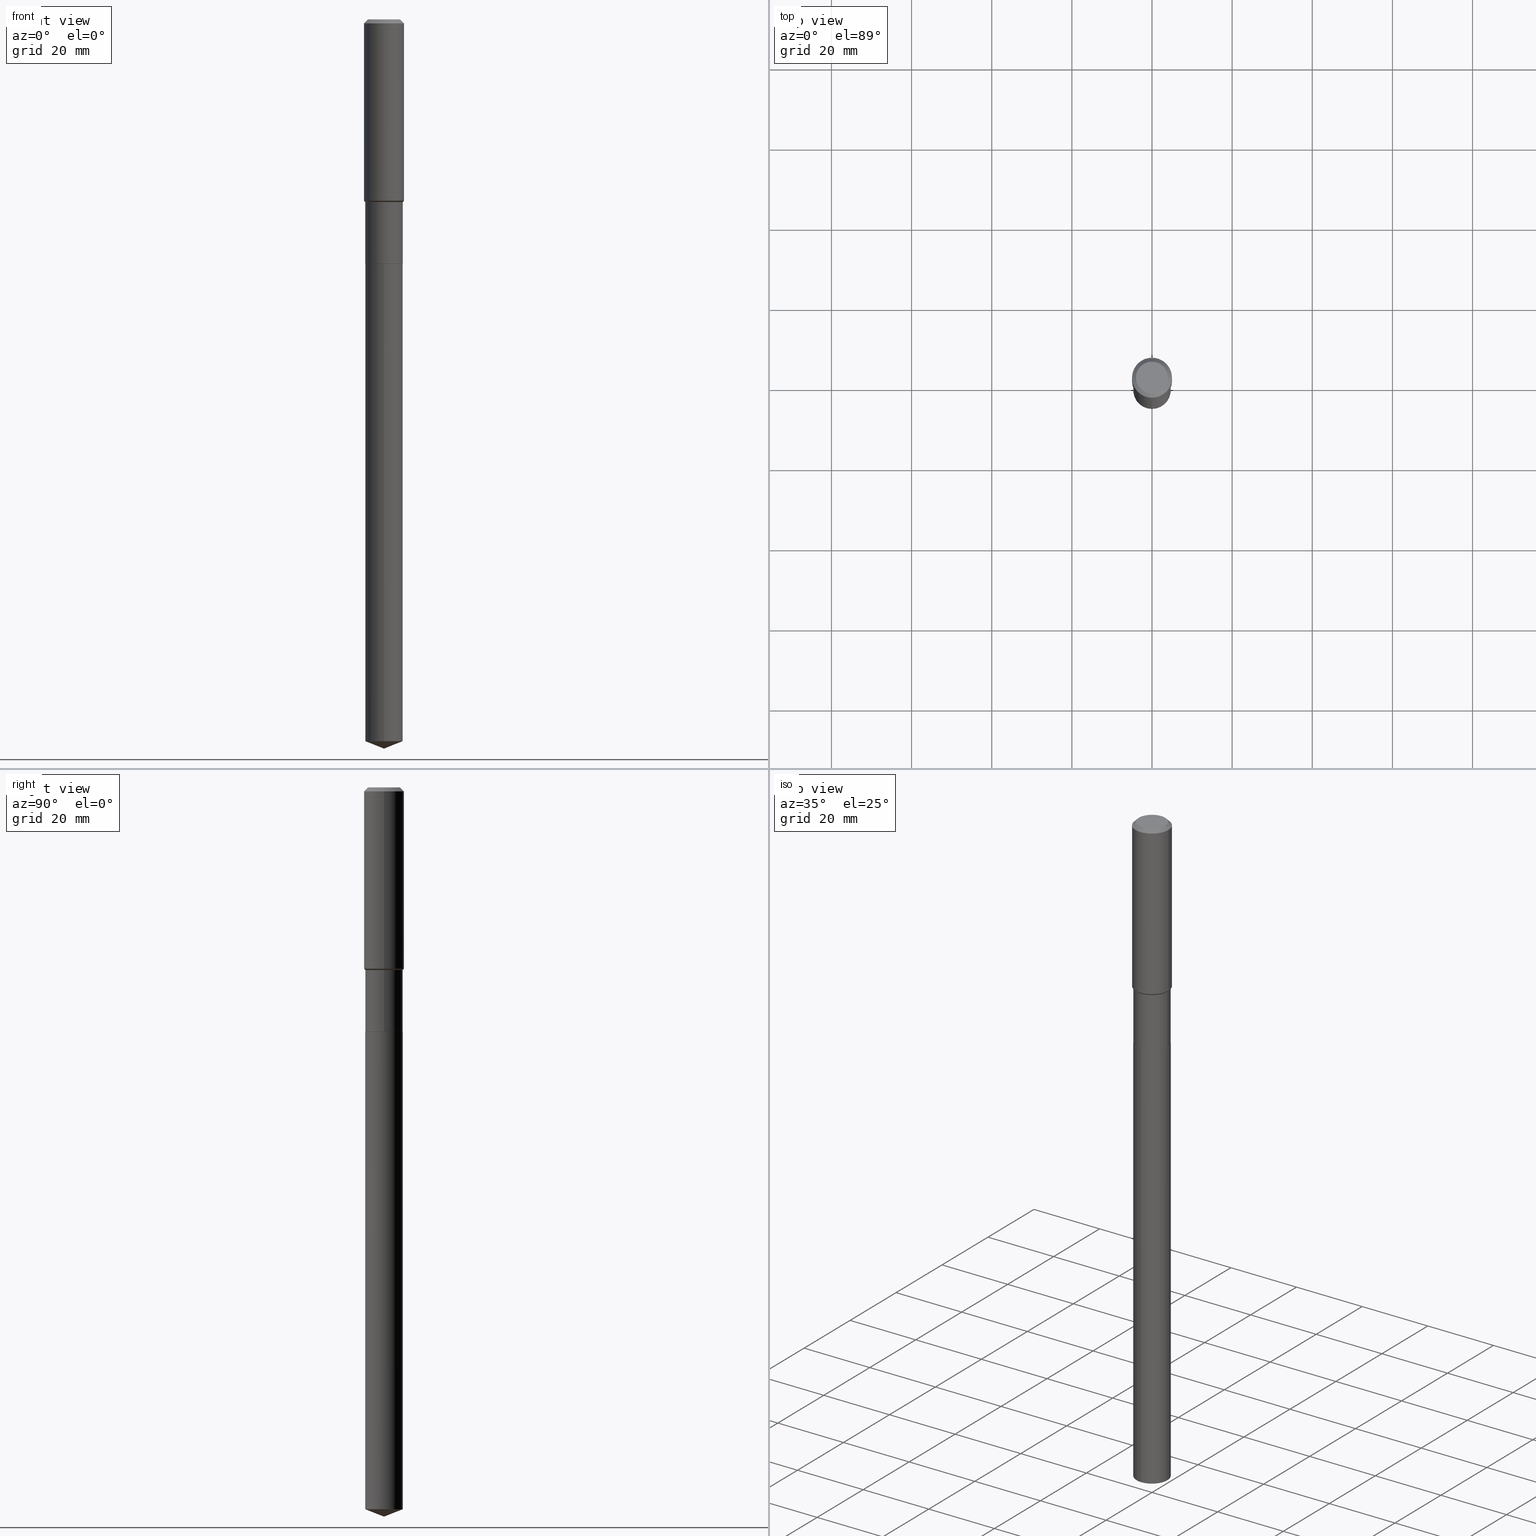
[diagram: canonical four-view strip — front | top / right | iso, engineering-drawing reading convention]
A machine part, canonical four-view strip (front | top / right | iso — engineering-drawing reading convention). The complete STEP part file that produces these views, byte-faithful:
ISO-10303-21;
HEADER;
FILE_DESCRIPTION (( 'STEP AP203' ),
    '1' );
FILE_NAME ('56528.STEP',
    '2024-04-24T18:19:25',
    ( '' ),
    ( '' ),
    'SwSTEP 2.0',
    'SolidWorks 2023',
    '' );
FILE_SCHEMA (( 'CONFIG_CONTROL_DESIGN' ));
ENDSEC;

DATA;
#1 = VERTEX_POINT ( 'NONE', #459 ) ;
#2 = ORIENTED_EDGE ( 'NONE', *, *, #70, .F. ) ;
#3 =( NAMED_UNIT ( * ) PLANE_ANGLE_UNIT ( ) SI_UNIT ( $, .RADIAN. ) );
#4 = CC_DESIGN_APPROVAL ( #135, ( #165 ) ) ;
#5 = AXIS2_PLACEMENT_3D ( 'NONE', #320, #175, #178 ) ;
#6 = ORIENTED_EDGE ( 'NONE', *, *, #450, .F. ) ;
#7 = EDGE_LOOP ( 'NONE', ( #153, #81, #277, #161 ) ) ;
#8 = PERSON_AND_ORGANIZATION ( #205, #455 ) ;
#9 = DIRECTION ( 'NONE',  ( -2.445468806185136597E-29, 3.491481338843145583E-15, 1.000000000000000000 ) ) ;
#10 = EDGE_CURVE ( 'NONE', #379, #243, #325, .T. ) ;
#11 = ORIENTED_EDGE ( 'NONE', *, *, #112, .T. ) ;
#12 = CARTESIAN_POINT ( 'NONE',  ( -1.284865132694099423E-15, -0.1840000000000246994, -7.092520472486850025 ) ) ;
#13 = AXIS2_PLACEMENT_3D ( 'NONE', #440, #105, #259 ) ;
#14 = EDGE_LOOP ( 'NONE', ( #225, #429, #38, #484 ) ) ;
#15 = LINE ( 'NONE', #288, #171 ) ;
#16 = CARTESIAN_POINT ( 'NONE',  ( -0.1839999999999999969, -6.018252937295160618E-15, -2.401499999999999968 ) ) ;
#17 = DIRECTION ( 'NONE',  ( -2.445468806185136597E-29, 3.491481338843145583E-15, 1.000000000000000000 ) ) ;
#18 = DIRECTION ( 'NONE',  ( -2.445468806185136597E-29, 3.491481338843145583E-15, 1.000000000000000000 ) ) ;
#19 = CARTESIAN_POINT ( 'NONE',  ( 4.389127413341083429E-29, -6.266510706955677702E-15, -1.794800000000000173 ) ) ;
#20 = DIRECTION ( 'NONE',  ( -2.445489705462467392E-29, 3.491451409888495011E-15, 1.000000000000000000 ) ) ;
#21 = AXIS2_PLACEMENT_3D ( 'NONE', #99, #93, #469 ) ;
#22 = AXIS2_PLACEMENT_3D ( 'NONE', #101, #24, #182 ) ;
#23 = DIRECTION ( 'NONE',  ( 1.000000000000000000, -6.982962677686261977E-15, 0.000000000000000000 ) ) ;
#24 = DIRECTION ( 'NONE',  ( -2.445468806185136597E-29, 3.491481338843145583E-15, 1.000000000000000000 ) ) ;
#25 = CARTESIAN_POINT ( 'NONE',  ( 1.734463560118424008E-28, -2.476326249267630010E-14, -7.092520472486850913 ) ) ;
#26 = DIRECTION ( 'NONE',  ( -2.445468806185136597E-29, 3.491481338843145583E-15, 1.000000000000000000 ) ) ;
#27 = EDGE_CURVE ( 'NONE', #243, #379, #434, .T. ) ;
#28 = CLOSED_SHELL ( 'NONE', ( #271, #482, #246, #221, #95, #68, #366, #464, #37, #192, #308, #49 ) ) ;
#29 = AXIS2_PLACEMENT_3D ( 'NONE', #263, #102, #296 ) ;
#30 = EDGE_CURVE ( 'NONE', #274, #160, #316, .T. ) ;
#31 = CIRCLE ( 'NONE', #306, 0.1968500000000002192 ) ;
#32 = DIRECTION ( 'NONE',  ( 1.000000000000000000, -6.982962677686265922E-15, 4.876223630392693006E-29 ) ) ;
#33 = ORIENTED_EDGE ( 'NONE', *, *, #138, .T. ) ;
#34 = DIRECTION ( 'NONE',  ( -1.000000000000000000, 6.982962677686265922E-15, 0.000000000000000000 ) ) ;
#35 = ORIENTED_EDGE ( 'NONE', *, *, #376, .F. ) ;
#36 = VERTEX_POINT ( 'NONE', #441 ) ;
#37 = ADVANCED_FACE ( 'NONE', ( #139 ), #354, .T. ) ;
#38 = ORIENTED_EDGE ( 'NONE', *, *, #485, .T. ) ;
#39 = ORIENTED_EDGE ( 'NONE', *, *, #30, .T. ) ;
#40 = DATE_AND_TIME ( #349, #206 ) ;
#41 = ORIENTED_EDGE ( 'NONE', *, *, #132, .F. ) ;
#42 = CC_DESIGN_PERSON_AND_ORGANIZATION_ASSIGNMENT ( #73, #385, ( #165 ) ) ;
#43 = CLOSED_SHELL ( 'NONE', ( #303, #207, #214, #335, #395 ) ) ;
#44 = AXIS2_PLACEMENT_3D ( 'NONE', #245, #393, #310 ) ;
#45 = AXIS2_PLACEMENT_3D ( 'NONE', #184, #480, #474 ) ;
#46 = EDGE_LOOP ( 'NONE', ( #391, #52, #169, #460 ) ) ;
#47 = APPROVAL_STATUS ( 'not_yet_approved' ) ;
#48 = LINE ( 'NONE', #319, #107 ) ;
#49 = ADVANCED_FACE ( 'NONE', ( #406 ), #114, .T. ) ;
#50 = VERTEX_POINT ( 'NONE', #16 ) ;
#51 = FACE_OUTER_BOUND ( 'NONE', #341, .T. ) ;
#52 = ORIENTED_EDGE ( 'NONE', *, *, #10, .T. ) ;
#53 = ORIENTED_EDGE ( 'NONE', *, *, #80, .T. ) ;
#54 = DIRECTION ( 'NONE',  ( -2.445489705462467392E-29, 3.491451409888495011E-15, 1.000000000000000000 ) ) ;
#55 = CARTESIAN_POINT ( 'NONE',  ( 5.874016072456697244E-29, -8.386538175901234466E-15, -2.401999999999999691 ) ) ;
#56 = AXIS2_PLACEMENT_3D ( 'NONE', #121, #181, #97 ) ;
#57 = VECTOR ( 'NONE', #360, 39.37007874015748854 ) ;
#58 = LINE ( 'NONE', #463, #281 ) ;
#59 = CARTESIAN_POINT ( 'NONE',  ( 0.1968500000000000250, -1.487948651171581601E-15, -0.03937000000000024508 ) ) ;
#60 = DIRECTION ( 'NONE',  ( -6.982962677686265133E-15, -1.000000000000000000, 2.969399993113329585E-15 ) ) ;
#61 = CARTESIAN_POINT ( 'NONE',  ( 1.307398633798642893E-15, 0.1839999999999916147, -2.402000000000000135 ) ) ;
#62 = EDGE_CURVE ( 'NONE', #36, #88, #293, .T. ) ;
#63 = LINE ( 'NONE', #470, #77 ) ;
#64 = LINE ( 'NONE', #466, #57 ) ;
#65 = CARTESIAN_POINT ( 'NONE',  ( 0.1839999999999999414, -7.551375839649950871E-15, -1.794800000000000173 ) ) ;
#66 = AXIS2_PLACEMENT_3D ( 'NONE', #84, #9, #212 ) ;
#67 = DIRECTION ( 'NONE',  ( 0.7071067811865453523, -7.319954787623248157E-15, -0.7071067811865496822 ) ) ;
#68 = ADVANCED_FACE ( 'NONE', ( #173 ), #252, .T. ) ;
#69 = DIRECTION ( 'NONE',  ( 0.7071067811865522357, -2.468850131082306364E-15, 0.7071067811865427988 ) ) ;
#70 = EDGE_CURVE ( 'NONE', #488, #50, #94, .T. ) ;
#71 = DIRECTION ( 'NONE',  ( 1.000000000000000000, -6.982962677686265922E-15, 0.000000000000000000 ) ) ;
#72 = AXIS2_PLACEMENT_3D ( 'NONE', #267, #445, #32 ) ;
#73 = PERSON_AND_ORGANIZATION ( #205, #455 ) ;
#74 = EDGE_LOOP ( 'NONE', ( #41, #53, #111, #383 ) ) ;
#75 = CC_DESIGN_APPROVAL ( #224, ( #381 ) ) ;
#76 = AXIS2_PLACEMENT_3D ( 'NONE', #256, #248, #439 ) ;
#77 = VECTOR ( 'NONE', #407, 39.37007874015748143 ) ;
#78 = PERSON_AND_ORGANIZATION ( #205, #455 ) ;
#79 = PERSON_AND_ORGANIZATION_ROLE ( 'design_owner' ) ;
#80 = EDGE_CURVE ( 'NONE', #309, #197, #436, .T. ) ;
#81 = ORIENTED_EDGE ( 'NONE', *, *, #312, .T. ) ;
#82 = ORIENTED_EDGE ( 'NONE', *, *, #447, .T. ) ;
#83 = APPROVAL_DATE_TIME ( #86, #135 ) ;
#84 = CARTESIAN_POINT ( 'NONE',  ( 5.874016072456697244E-29, -8.386538175901234466E-15, -2.401999999999999691 ) ) ;
#85 = CIRCLE ( 'NONE', #29, 0.1968500000000002192 ) ;
#86 = DATE_AND_TIME ( #457, #333 ) ;
#87 = CARTESIAN_POINT ( 'NONE',  ( -7.875723872272743890E-28, 1.124423956835437741E-13, 32.20507874015748229 ) ) ;
#88 = VERTEX_POINT ( 'NONE', #355 ) ;
#89 = PERSON_AND_ORGANIZATION_ROLE ( 'design_supplier' ) ;
#90 = DIRECTION ( 'NONE',  ( -6.982962677686269866E-15, -1.000000000000000000, 3.498627837350016055E-15 ) ) ;
#91 = FACE_OUTER_BOUND ( 'NONE', #420, .T. ) ;
#92 = SECURITY_CLASSIFICATION ( '', '', #118 ) ;
#93 = DIRECTION ( 'NONE',  ( -2.445468806185136597E-29, 3.491481338843145583E-15, 1.000000000000000000 ) ) ;
#94 = CIRCLE ( 'NONE', #294, 0.1839999999999999969 ) ;
#95 = ADVANCED_FACE ( 'NONE', ( #329 ), #219, .T. ) ;
#96 = DIRECTION ( 'NONE',  ( -2.445489705462467392E-29, 3.491451409888495011E-15, 1.000000000000000000 ) ) ;
#97 = DIRECTION ( 'NONE',  ( 1.000000000000000000, -6.982962677686265922E-15, 0.000000000000000000 ) ) ;
#98 = DIRECTION ( 'NONE',  ( -2.445468806185136597E-29, 3.491481338843145583E-15, 1.000000000000000000 ) ) ;
#99 = CARTESIAN_POINT ( 'NONE',  ( 4.389127413341083429E-29, -6.266510706955677702E-15, -1.794800000000000173 ) ) ;
#100 = EDGE_CURVE ( 'NONE', #191, #309, #64, .T. ) ;
#101 = CARTESIAN_POINT ( 'NONE',  ( 5.872793338053605564E-29, -8.384792435231812174E-15, -2.401499999999999968 ) ) ;
#102 = DIRECTION ( 'NONE',  ( -2.445468806185136597E-29, 3.491481338843145583E-15, 1.000000000000000000 ) ) ;
#103 = CC_DESIGN_DATE_AND_TIME_ASSIGNMENT ( #40, #244, ( #381 ) ) ;
#104 = DIRECTION ( 'NONE',  ( -2.445468806185136877E-29, 3.491481338843145188E-15, 1.000000000000000000 ) ) ;
#105 = DIRECTION ( 'NONE',  ( 2.445489705462467112E-29, -3.491451409888495011E-15, -1.000000000000000000 ) ) ;
#106 = ORIENTED_EDGE ( 'NONE', *, *, #405, .F. ) ;
#107 = VECTOR ( 'NONE', #465, 39.37007874015748143 ) ;
#108 = VECTOR ( 'NONE', #227, 39.37007874015748143 ) ;
#109 = PERSON_AND_ORGANIZATION ( #205, #455 ) ;
#110 = ORIENTED_EDGE ( 'NONE', *, *, #226, .T. ) ;
#111 = ORIENTED_EDGE ( 'NONE', *, *, #405, .T. ) ;
#112 = EDGE_CURVE ( 'NONE', #235, #50, #216, .T. ) ;
#113 = APPROVAL_STATUS ( 'not_yet_approved' ) ;
#114 = CONICAL_SURFACE ( 'NONE', #149, 0.1834999999999999964, 0.7853981633975507526 ) ;
#115 = CC_DESIGN_PERSON_AND_ORGANIZATION_ASSIGNMENT ( #236, #423, ( #381 ) ) ;
#116 = DIRECTION ( 'NONE',  ( 0.000000000000000000, 0.000000000000000000, 1.000000000000000000 ) ) ;
#117 = ORIENTED_EDGE ( 'NONE', *, *, #487, .F. ) ;
#118 = SECURITY_CLASSIFICATION_LEVEL ( 'unclassified' ) ;
#119 = ORIENTED_EDGE ( 'NONE', *, *, #190, .F. ) ;
#120 = DIRECTION ( 'NONE',  ( -6.497071151882117470E-15, -0.9304175679820241296, 0.3665012267242980792 ) ) ;
#121 = CARTESIAN_POINT ( 'NONE',  ( 4.389127413341083429E-29, -6.266510706955677702E-15, -1.794800000000000173 ) ) ;
#122 = EDGE_LOOP ( 'NONE', ( #238, #317, #110, #343 ) ) ;
#123 = APPROVAL_DATE_TIME ( #159, #224 ) ;
#124 = CARTESIAN_POINT ( 'NONE',  ( 5.874016072456697244E-29, -8.386538175901234466E-15, -2.401999999999999691 ) ) ;
#125 = AXIS2_PLACEMENT_3D ( 'NONE', #321, #357, #283 ) ;
#126 = PRODUCT_DEFINITION_SHAPE ( 'NONE', 'NONE',  #381 ) ;
#127 = APPROVAL_STATUS ( 'not_yet_approved' ) ;
#128 = FACE_OUTER_BOUND ( 'NONE', #369, .T. ) ;
#129 = EDGE_LOOP ( 'NONE', ( #82, #311, #300, #106 ) ) ;
#130 = FACE_OUTER_BOUND ( 'NONE', #74, .T. ) ;
#131 = DIRECTION ( 'NONE',  ( -2.445489705462467392E-29, 3.491451409888495011E-15, 1.000000000000000000 ) ) ;
#132 = EDGE_CURVE ( 'NONE', #309, #160, #134, .T. ) ;
#133 = DIRECTION ( 'NONE',  ( 2.438088387897960049E-29, -3.491481338843145188E-15, -1.000000000000000000 ) ) ;
#134 = LINE ( 'NONE', #61, #298 ) ;
#135 = APPROVAL ( #47, 'UNSPECIFIED' ) ;
#136 = DIRECTION ( 'NONE',  ( -6.982962677686265133E-15, -1.000000000000000000, 2.969399993113329585E-15 ) ) ;
#137 = CARTESIAN_POINT ( 'NONE',  ( 0.1834999999999999964, -9.667911827256663839E-15, -2.401999999999999691 ) ) ;
#138 = EDGE_CURVE ( 'NONE', #379, #156, #289, .T. ) ;
#139 = FACE_OUTER_BOUND ( 'NONE', #122, .T. ) ;
#140 = DESIGN_CONTEXT ( 'detailed design', #330, 'design' ) ;
#141 = LINE ( 'NONE', #332, #490 ) ;
#142 = VECTOR ( 'NONE', #67, 39.37007874015748143 ) ;
#143 = CARTESIAN_POINT ( 'NONE',  ( 4.389127413341083429E-29, -6.266510706955677702E-15, -1.794800000000000173 ) ) ;
#144 = AXIS2_PLACEMENT_3D ( 'NONE', #328, #98, #261 ) ;
#145 = ORIENTED_EDGE ( 'NONE', *, *, #146, .F. ) ;
#146 = EDGE_CURVE ( 'NONE', #235, #203, #483, .T. ) ;
#147 = CALENDAR_DATE ( 2024, 24, 4 ) ;
#148 = AXIS2_PLACEMENT_3D ( 'NONE', #55, #131, #292 ) ;
#149 = AXIS2_PLACEMENT_3D ( 'NONE', #253, #398, #367 ) ;
#150 = ORIENTED_EDGE ( 'NONE', *, *, #467, .F. ) ;
#151 = FACE_OUTER_BOUND ( 'NONE', #411, .T. ) ;
#152 = EDGE_CURVE ( 'NONE', #1, #88, #141, .T. ) ;
#153 = ORIENTED_EDGE ( 'NONE', *, *, #70, .T. ) ;
#154 = EDGE_CURVE ( 'NONE', #156, #1, #85, .T. ) ;
#155 = MANIFOLD_SOLID_BREP ( 'Body-Move/Copy2[2]', #28 ) ;
#156 = VERTEX_POINT ( 'NONE', #260 ) ;
#157 = CONICAL_SURFACE ( 'NONE', #386, 0.1968500000000000250, 0.7853981633974452814 ) ;
#158 = ORIENTED_EDGE ( 'NONE', *, *, #262, .T. ) ;
#159 = DATE_AND_TIME ( #147, #255 ) ;
#160 = VERTEX_POINT ( 'NONE', #408 ) ;
#161 = ORIENTED_EDGE ( 'NONE', *, *, #485, .F. ) ;
#162 = APPROVAL_ROLE ( '' ) ;
#163 = DIRECTION ( 'NONE',  ( 1.000000000000000000, -6.982962677686265922E-15, 0.000000000000000000 ) ) ;
#164 = PRODUCT ( '56528', '56528', '', ( #378 ) ) ;
#165 = PRODUCT_DEFINITION_FORMATION_WITH_SPECIFIED_SOURCE ( 'ANY', '', #164, .NOT_KNOWN. ) ;
#166 = ORIENTED_EDGE ( 'NONE', *, *, #100, .F. ) ;
#167 = COORDINATED_UNIVERSAL_TIME_OFFSET ( 5, 0, .BEHIND. ) ;
#168 = CARTESIAN_POINT ( 'NONE',  ( -4.713871149261283817E-47, 6.730158695841841775E-33, 1.927594061857935365E-18 ) ) ;
#169 = ORIENTED_EDGE ( 'NONE', *, *, #431, .T. ) ;
#170 = APPLICATION_CONTEXT ( 'configuration controlled 3d designs of mechanical parts and assemblies' ) ;
#171 = VECTOR ( 'NONE', #120, 39.37007874015748854 ) ;
#172 = CARTESIAN_POINT ( 'NONE',  ( -1.284865132694214202E-15, -0.1840000000000084068, -2.401999999999999247 ) ) ;
#173 = FACE_OUTER_BOUND ( 'NONE', #14, .T. ) ;
#174 = CARTESIAN_POINT ( 'NONE',  ( 1.752193373963857826E-28, -2.501624935185106084E-14, -7.165000000000000036 ) ) ;
#175 = DIRECTION ( 'NONE',  ( -2.445468806185136597E-29, 3.491481338843145583E-15, 1.000000000000000000 ) ) ;
#176 = CC_DESIGN_PERSON_AND_ORGANIZATION_ASSIGNMENT ( #278, #241, ( #92 ) ) ;
#177 = CARTESIAN_POINT ( 'NONE',  ( -0.1968500000000000250, -1.780849020687141152E-15, -0.03937000000000024508 ) ) ;
#178 = DIRECTION ( 'NONE',  ( 1.000000000000000000, -6.982962677686265922E-15, 4.876176775795935793E-29 ) ) ;
#179 = VECTOR ( 'NONE', #438, 39.37007874015748143 ) ;
#180 = CARTESIAN_POINT ( 'NONE',  ( -0.1574800000000000089, 1.168406772637159618E-15, 3.855188123707939751E-18 ) ) ;
#181 = DIRECTION ( 'NONE',  ( -2.445468806185136597E-29, 3.491481338843145583E-15, 1.000000000000000000 ) ) ;
#182 = DIRECTION ( 'NONE',  ( 1.000000000000000000, -6.982962677686264344E-15, 0.000000000000000000 ) ) ;
#183 = DIRECTION ( 'NONE',  ( 2.445468806185136597E-29, -3.491481338843145583E-15, -1.000000000000000000 ) ) ;
#184 = CARTESIAN_POINT ( 'NONE',  ( 1.734463560118424008E-28, -2.476326249267630010E-14, -7.092520472486850913 ) ) ;
#185 = AXIS2_PLACEMENT_3D ( 'NONE', #25, #404, #210 ) ;
#186 = CIRCLE ( 'NONE', #250, 0.1839999999999999969 ) ;
#187 = EDGE_CURVE ( 'NONE', #88, #452, #397, .T. ) ;
#188 = CARTESIAN_POINT ( 'NONE',  ( 9.627810689950943645E-31, -1.374596203102555315E-16, -0.03937000000000024508 ) ) ;
#189 = ORIENTED_EDGE ( 'NONE', *, *, #344, .T. ) ;
#190 = EDGE_CURVE ( 'NONE', #191, #197, #15, .T. ) ;
#191 = VERTEX_POINT ( 'NONE', #174 ) ;
#192 = ADVANCED_FACE ( 'NONE', ( #209 ), #247, .F. ) ;
#193 = AXIS2_PLACEMENT_3D ( 'NONE', #410, #17, #163 ) ;
#194 = ORIENTED_EDGE ( 'NONE', *, *, #190, .T. ) ;
#195 = CARTESIAN_POINT ( 'NONE',  ( 0.000000000000000000, 0.000000000000000000, 0.000000000000000000 ) ) ;
#196 = ORIENTED_EDGE ( 'NONE', *, *, #100, .T. ) ;
#197 = VERTEX_POINT ( 'NONE', #12 ) ;
#198 = ORIENTED_EDGE ( 'NONE', *, *, #280, .T. ) ;
#199 = CIRCLE ( 'NONE', #222, 0.1834999999999999964 ) ;
#200 = ORIENTED_EDGE ( 'NONE', *, *, #146, .T. ) ;
#201 = COORDINATED_UNIVERSAL_TIME_OFFSET ( 5, 0, .BEHIND. ) ;
#202 = CYLINDRICAL_SURFACE ( 'NONE', #44, 0.1968500000000001082 ) ;
#203 = VERTEX_POINT ( 'NONE', #468 ) ;
#204 = DIRECTION ( 'NONE',  ( -2.445468806185136597E-29, 3.491481338843145583E-15, 1.000000000000000000 ) ) ;
#205 = PERSON ( 'UNSPECIFIED', 'UNSPECIFIED', 'UNSPECIFIED', ('UNSPECIFIED'), ('UNSPECIFIED'), ('UNSPECIFIED') ) ;
#206 = LOCAL_TIME ( 14, 19, 25.00000000000000000, #232 ) ;
#207 = ADVANCED_FACE ( 'NONE', ( #461 ), #229, .T. ) ;
#208 = ORIENTED_EDGE ( 'NONE', *, *, #433, .T. ) ;
#209 = FACE_OUTER_BOUND ( 'NONE', #307, .T. ) ;
#210 = DIRECTION ( 'NONE',  ( -6.982962677686265133E-15, -1.000000000000000000, 5.938799986226659171E-15 ) ) ;
#211 = AXIS2_PLACEMENT_3D ( 'NONE', #168, #133, #390 ) ;
#212 = DIRECTION ( 'NONE',  ( 1.000000000000000000, -6.982962677686261977E-15, 0.000000000000000000 ) ) ;
#213 = CARTESIAN_POINT ( 'NONE',  ( 5.872793338053605564E-29, -8.384792435231812174E-15, -2.401499999999999968 ) ) ;
#214 = ADVANCED_FACE ( 'NONE', ( #51 ), #249, .T. ) ;
#215 = FACE_OUTER_BOUND ( 'NONE', #462, .T. ) ;
#216 = LINE ( 'NONE', #322, #426 ) ;
#217 = CIRCLE ( 'NONE', #125, 0.1574800000000000089 ) ;
#218 = DIRECTION ( 'NONE',  ( -2.445468806185136597E-29, 3.491481338843145583E-15, 1.000000000000000000 ) ) ;
#219 = CYLINDRICAL_SURFACE ( 'NONE', #5, 0.1839999999999999691 ) ;
#220 = CARTESIAN_POINT ( 'NONE',  ( 5.874016072456697244E-29, -8.386538175901234466E-15, -2.401999999999999691 ) ) ;
#221 = ADVANCED_FACE ( 'NONE', ( #430 ), #449, .T. ) ;
#222 = AXIS2_PLACEMENT_3D ( 'NONE', #251, #204, #396 ) ;
#223 = CIRCLE ( 'NONE', #72, 0.1574800000000000089 ) ;
#224 = APPROVAL ( #113, 'UNSPECIFIED' ) ;
#225 = ORIENTED_EDGE ( 'NONE', *, *, #312, .F. ) ;
#226 = EDGE_CURVE ( 'NONE', #345, #452, #58, .T. ) ;
#227 = DIRECTION ( 'NONE',  ( -2.445468806185136877E-29, 3.491481338843145188E-15, 1.000000000000000000 ) ) ;
#228 = APPROVAL_PERSON_ORGANIZATION ( #375, #135, #346 ) ;
#229 = CONICAL_SURFACE ( 'NONE', #365, 99.94676754583963429, 1.195550537616118403 ) ;
#230 = APPLICATION_PROTOCOL_DEFINITION ( 'international standard', 'config_control_design', 1994, #330 ) ;
#231 =( CONVERSION_BASED_UNIT ( 'INCH', #453 ) LENGTH_UNIT ( ) NAMED_UNIT ( #392 ) );
#232 = COORDINATED_UNIVERSAL_TIME_OFFSET ( 5, 0, .BEHIND. ) ;
#233 = ORIENTED_EDGE ( 'NONE', *, *, #112, .F. ) ;
#234 = LOCAL_TIME ( 14, 19, 25.00000000000000000, #456 ) ;
#235 = VERTEX_POINT ( 'NONE', #350 ) ;
#236 = PERSON_AND_ORGANIZATION ( #205, #455 ) ;
#237 = DIRECTION ( 'NONE',  ( -2.438088387897960049E-29, 3.491481338843145188E-15, 1.000000000000000000 ) ) ;
#238 = ORIENTED_EDGE ( 'NONE', *, *, #62, .F. ) ;
#239 = AXIS2_PLACEMENT_3D ( 'NONE', #285, #432, #442 ) ;
#240 = ORIENTED_EDGE ( 'NONE', *, *, #467, .T. ) ;
#241 = PERSON_AND_ORGANIZATION_ROLE ( 'classification_officer' ) ;
#242 = DIRECTION ( 'NONE',  ( -6.982962677686269866E-15, -1.000000000000000000, 3.498627837350016055E-15 ) ) ;
#243 = VERTEX_POINT ( 'NONE', #424 ) ;
#244 = DATE_TIME_ROLE ( 'creation_date' ) ;
#245 = CARTESIAN_POINT ( 'NONE',  ( 0.000000000000000000, 0.000000000000000000, 0.000000000000000000 ) ) ;
#246 = ADVANCED_FACE ( 'NONE', ( #91 ), #202, .T. ) ;
#247 = PLANE ( 'NONE',  #211 ) ;
#248 = DIRECTION ( 'NONE',  ( 2.445468806185136597E-29, -3.491481338843145583E-15, -1.000000000000000000 ) ) ;
#249 = CONICAL_SURFACE ( 'NONE', #413, 99.94676754583963429, 1.195550537616118403 ) ;
#250 = AXIS2_PLACEMENT_3D ( 'NONE', #220, #368, #136 ) ;
#251 = CARTESIAN_POINT ( 'NONE',  ( 5.874016072456697244E-29, -8.386538175901234466E-15, -2.401999999999999691 ) ) ;
#252 = CYLINDRICAL_SURFACE ( 'NONE', #304, 0.1839999999999999691 ) ;
#253 = CARTESIAN_POINT ( 'NONE',  ( 5.874016072456697244E-29, -8.386538175901234466E-15, -2.401999999999999691 ) ) ;
#254 = LINE ( 'NONE', #65, #327 ) ;
#255 = LOCAL_TIME ( 14, 19, 25.00000000000000000, #486 ) ;
#256 = CARTESIAN_POINT ( 'NONE',  ( 9.627810689950943645E-31, -1.374596203102555315E-16, -0.03937000000000024508 ) ) ;
#257 = CONICAL_SURFACE ( 'NONE', #318, 0.1839999999999999414, 0.7853981633974549403 ) ;
#258 = CARTESIAN_POINT ( 'NONE',  ( 0.000000000000000000, 0.000000000000000000, 0.000000000000000000 ) ) ;
#259 = DIRECTION ( 'NONE',  ( 6.982962677686265922E-15, 1.000000000000000000, -3.491451409888495011E-15 ) ) ;
#260 = CARTESIAN_POINT ( 'NONE',  ( -0.1968500000000002192, -4.822941796407783722E-15, -1.781950000000000145 ) ) ;
#261 = DIRECTION ( 'NONE',  ( 1.000000000000000000, -6.982962677686265922E-15, 0.000000000000000000 ) ) ;
#262 = EDGE_CURVE ( 'NONE', #203, #235, #199, .T. ) ;
#263 = CARTESIAN_POINT ( 'NONE',  ( 4.357703139181603812E-29, -6.221645171751543877E-15, -1.781950000000000145 ) ) ;
#264 = AXIS2_PLACEMENT_3D ( 'NONE', #19, #359, #313 ) ;
#265 = CARTESIAN_POINT ( 'NONE',  ( 0.1839999999999999691, -1.284865132694272775E-15, 8.972165267464520289E-30 ) ) ;
#266 = ORIENTED_EDGE ( 'NONE', *, *, #447, .F. ) ;
#267 = CARTESIAN_POINT ( 'NONE',  ( -9.427742298522567634E-47, 1.346031739168368355E-32, 3.855188123715870730E-18 ) ) ;
#268 = ORIENTED_EDGE ( 'NONE', *, *, #27, .T. ) ;
#269 = ORIENTED_EDGE ( 'NONE', *, *, #450, .T. ) ;
#270 = APPROVAL_ROLE ( '' ) ;
#271 = ADVANCED_FACE ( 'NONE', ( #128 ), #290, .T. ) ;
#272 = APPLICATION_PROTOCOL_DEFINITION ( 'international standard', 'config_control_design', 1994, #170 ) ;
#273 = CALENDAR_DATE ( 2024, 24, 4 ) ;
#274 = VERTEX_POINT ( 'NONE', #172 ) ;
#275 = PRODUCT_RELATED_PRODUCT_CATEGORY ( 'detail', '', ( #164 ) ) ;
#276 = PLANE ( 'NONE',  #326 ) ;
#277 = ORIENTED_EDGE ( 'NONE', *, *, #27, .F. ) ;
#278 = PERSON_AND_ORGANIZATION ( #205, #455 ) ;
#279 = CARTESIAN_POINT ( 'NONE',  ( 5.874016072456697244E-29, -8.386538175901234466E-15, -2.401999999999999691 ) ) ;
#280 = EDGE_CURVE ( 'NONE', #345, #36, #217, .T. ) ;
#281 = VECTOR ( 'NONE', #435, 39.37007874015748143 ) ;
#282 = ORIENTED_EDGE ( 'NONE', *, *, #431, .F. ) ;
#283 = DIRECTION ( 'NONE',  ( 1.000000000000000000, -6.982962677686265922E-15, 4.876223630392693006E-29 ) ) ;
#284 = EDGE_LOOP ( 'NONE', ( #39, #208 ) ) ;
#285 = CARTESIAN_POINT ( 'NONE',  ( 5.874016072456697244E-29, -8.386538175901234466E-15, -2.401999999999999691 ) ) ;
#286 = DIRECTION ( 'NONE',  ( -0.7071067811866199593, 7.493145998870616062E-15, 0.7071067811864750752 ) ) ;
#287 = CC_DESIGN_SECURITY_CLASSIFICATION ( #92, ( #165 ) ) ;
#288 = CARTESIAN_POINT ( 'NONE',  ( 1.752183333951028132E-28, -2.501639313054920620E-14, -7.165000000000000036 ) ) ;
#289 = LINE ( 'NONE', #437, #454 ) ;
#290 = CONICAL_SURFACE ( 'NONE', #66, 0.1834999999999999964, 0.7853981633975507526 ) ;
#291 = AXIS2_PLACEMENT_3D ( 'NONE', #195, #116, #340 ) ;
#292 = DIRECTION ( 'NONE',  ( -6.982962677686265133E-15, -1.000000000000000000, 2.969399993113329585E-15 ) ) ;
#293 = LINE ( 'NONE', #59, #142 ) ;
#294 = AXIS2_PLACEMENT_3D ( 'NONE', #213, #18, #475 ) ;
#295 = PLANE ( 'NONE',  #13 ) ;
#296 = DIRECTION ( 'NONE',  ( 1.000000000000000000, -6.982962677686265922E-15, 0.000000000000000000 ) ) ;
#297 = CC_DESIGN_PERSON_AND_ORGANIZATION_ASSIGNMENT ( #109, #89, ( #165 ) ) ;
#298 = VECTOR ( 'NONE', #20, 39.37007874015748143 ) ;
#299 = EDGE_LOOP ( 'NONE', ( #150, #446, #348, #351 ) ) ;
#300 = ORIENTED_EDGE ( 'NONE', *, *, #30, .F. ) ;
#301 = PERSON_AND_ORGANIZATION ( #205, #455 ) ;
#302 = CC_DESIGN_APPROVAL ( #418, ( #92 ) ) ;
#303 = ADVANCED_FACE ( 'NONE', ( #400 ), #458, .T. ) ;
#304 = AXIS2_PLACEMENT_3D ( 'NONE', #394, #358, #324 ) ;
#305 = DATE_TIME_ROLE ( 'classification_date' ) ;
#306 = AXIS2_PLACEMENT_3D ( 'NONE', #444, #409, #71 ) ;
#307 = EDGE_LOOP ( 'NONE', ( #198, #240 ) ) ;
#308 = ADVANCED_FACE ( 'NONE', ( #215 ), #276, .F. ) ;
#309 = VERTEX_POINT ( 'NONE', #387 ) ;
#310 = DIRECTION ( 'NONE',  ( 1.000000000000000000, -6.982962677686266711E-15, 4.876176775795935793E-29 ) ) ;
#311 = ORIENTED_EDGE ( 'NONE', *, *, #132, .T. ) ;
#312 = EDGE_CURVE ( 'NONE', #50, #379, #48, .T. ) ;
#313 = DIRECTION ( 'NONE',  ( 1.000000000000000000, -6.982962677686265922E-15, 0.000000000000000000 ) ) ;
#314 = EDGE_LOOP ( 'NONE', ( #233, #200, #189, #35 ) ) ;
#315 = CARTESIAN_POINT ( 'NONE',  ( -7.875723872272743890E-28, 1.124423956835437741E-13, 32.20507874015748229 ) ) ;
#316 = CIRCLE ( 'NONE', #148, 0.1839999999999999969 ) ;
#317 = ORIENTED_EDGE ( 'NONE', *, *, #280, .F. ) ;
#318 = AXIS2_PLACEMENT_3D ( 'NONE', #143, #218, #403 ) ;
#319 = CARTESIAN_POINT ( 'NONE',  ( -0.1839999999999999691, 1.307398633798584123E-15, -9.050840566069026560E-30 ) ) ;
#320 = CARTESIAN_POINT ( 'NONE',  ( 0.000000000000000000, 0.000000000000000000, 0.000000000000000000 ) ) ;
#321 = CARTESIAN_POINT ( 'NONE',  ( -9.427742298522567634E-47, 1.346031739168368355E-32, 3.855188123715870730E-18 ) ) ;
#322 = CARTESIAN_POINT ( 'NONE',  ( -0.1834999999999999964, -7.082692255781450650E-15, -2.401999999999999691 ) ) ;
#323 = FACE_OUTER_BOUND ( 'NONE', #46, .T. ) ;
#324 = DIRECTION ( 'NONE',  ( 1.000000000000000000, -6.982962677686265922E-15, 4.876176775795935793E-29 ) ) ;
#325 = CIRCLE ( 'NONE', #56, 0.1839999999999999414 ) ;
#326 = AXIS2_PLACEMENT_3D ( 'NONE', #279, #237, #353 ) ;
#327 = VECTOR ( 'NONE', #69, 39.37007874015748143 ) ;
#328 = CARTESIAN_POINT ( 'NONE',  ( 9.627810689950943645E-31, -1.374596203102555315E-16, -0.03937000000000024508 ) ) ;
#329 = FACE_OUTER_BOUND ( 'NONE', #7, .T. ) ;
#330 = APPLICATION_CONTEXT ( 'configuration controlled 3d designs of mechanical parts and assemblies' ) ;
#331 = UNCERTAINTY_MEASURE_WITH_UNIT (LENGTH_MEASURE( 1.000000000000000082E-05 ), #231, 'distance_accuracy_value', 'NONE');
#332 = CARTESIAN_POINT ( 'NONE',  ( 0.1968500000000001082, -1.374596203102542397E-15, 9.598753983154305062E-30 ) ) ;
#333 = LOCAL_TIME ( 14, 19, 25.00000000000000000, #167 ) ;
#334 = LINE ( 'NONE', #137, #179 ) ;
#335 = ADVANCED_FACE ( 'NONE', ( #130 ), #428, .T. ) ;
#336 = ORIENTED_EDGE ( 'NONE', *, *, #344, .F. ) ;
#337 = LINE ( 'NONE', #265, #108 ) ;
#338 = ORIENTED_EDGE ( 'NONE', *, *, #262, .F. ) ;
#339 = CALENDAR_DATE ( 2024, 24, 4 ) ;
#340 = DIRECTION ( 'NONE',  ( 1.000000000000000000, 0.000000000000000000, 0.000000000000000000 ) ) ;
#341 = EDGE_LOOP ( 'NONE', ( #166, #194, #373 ) ) ;
#342 =( LENGTH_UNIT ( ) NAMED_UNIT ( * ) SI_UNIT ( $, .METRE. ) );
#343 = ORIENTED_EDGE ( 'NONE', *, *, #415, .T. ) ;
#344 = EDGE_CURVE ( 'NONE', #203, #488, #334, .T. ) ;
#345 = VERTEX_POINT ( 'NONE', #180 ) ;
#346 = APPROVAL_ROLE ( '' ) ;
#347 = CIRCLE ( 'NONE', #45, 0.1839999999999999969 ) ;
#348 = ORIENTED_EDGE ( 'NONE', *, *, #187, .T. ) ;
#349 = CALENDAR_DATE ( 2024, 24, 4 ) ;
#350 = CARTESIAN_POINT ( 'NONE',  ( -0.1834999999999999964, -7.080043028607339449E-15, -2.401999999999999691 ) ) ;
#351 = ORIENTED_EDGE ( 'NONE', *, *, #226, .F. ) ;
#352 = DIRECTION ( 'NONE',  ( -2.445489705462467392E-29, 3.491451409888495011E-15, 1.000000000000000000 ) ) ;
#353 = DIRECTION ( 'NONE',  ( 1.000000000000000000, -6.982962677686265922E-15, 4.876176775795935793E-29 ) ) ;
#354 = CONICAL_SURFACE ( 'NONE', #76, 0.1968500000000000250, 0.7853981633974452814 ) ;
#355 = CARTESIAN_POINT ( 'NONE',  ( 0.1968500000000000250, -1.512055823412797189E-15, -0.03937000000000024508 ) ) ;
#356 = CIRCLE ( 'NONE', #144, 0.1968500000000000250 ) ;
#357 = DIRECTION ( 'NONE',  ( -2.445468806185136597E-29, 3.491481338843145583E-15, 1.000000000000000000 ) ) ;
#358 = DIRECTION ( 'NONE',  ( -2.445468806185136597E-29, 3.491481338843145583E-15, 1.000000000000000000 ) ) ;
#359 = DIRECTION ( 'NONE',  ( -2.445468806185136597E-29, 3.491481338843145583E-15, 1.000000000000000000 ) ) ;
#360 = DIRECTION ( 'NONE',  ( 6.611014441532063434E-15, 0.9304175679820266831, 0.3665012267242914734 ) ) ;
#361 = CC_DESIGN_DATE_AND_TIME_ASSIGNMENT ( #489, #305, ( #92 ) ) ;
#362 = FACE_OUTER_BOUND ( 'NONE', #284, .T. ) ;
#363 = CARTESIAN_POINT ( 'NONE',  ( 5.874016072456697244E-29, -8.386538175901234466E-15, -2.401999999999999691 ) ) ;
#364 = ADVANCED_BREP_SHAPE_REPRESENTATION ( '56528', ( #476, #155, #291 ), #473 ) ;
#365 = AXIS2_PLACEMENT_3D ( 'NONE', #315, #96, #242 ) ;
#366 = ADVANCED_FACE ( 'NONE', ( #323 ), #257, .T. ) ;
#367 = DIRECTION ( 'NONE',  ( 1.000000000000000000, -6.982962677686261977E-15, 0.000000000000000000 ) ) ;
#368 = DIRECTION ( 'NONE',  ( -2.445489705462467392E-29, 3.491451409888495011E-15, 1.000000000000000000 ) ) ;
#369 = EDGE_LOOP ( 'NONE', ( #158, #11, #2, #336 ) ) ;
#370 = APPROVAL_PERSON_ORGANIZATION ( #8, #418, #162 ) ;
#371 = AXIS2_PLACEMENT_3D ( 'NONE', #258, #26, #374 ) ;
#372 = CYLINDRICAL_SURFACE ( 'NONE', #371, 0.1968500000000001082 ) ;
#373 = ORIENTED_EDGE ( 'NONE', *, *, #80, .F. ) ;
#374 = DIRECTION ( 'NONE',  ( 1.000000000000000000, -6.982962677686266711E-15, 4.876176775795935793E-29 ) ) ;
#375 = PERSON_AND_ORGANIZATION ( #205, #455 ) ;
#376 = EDGE_CURVE ( 'NONE', #50, #488, #377, .T. ) ;
#377 = CIRCLE ( 'NONE', #22, 0.1839999999999999969 ) ;
#378 = MECHANICAL_CONTEXT ( 'NONE', #170, 'mechanical' ) ;
#379 = VERTEX_POINT ( 'NONE', #477 ) ;
#380 =( NAMED_UNIT ( * ) SI_UNIT ( $, .STERADIAN. ) SOLID_ANGLE_UNIT ( ) );
#381 = PRODUCT_DEFINITION ( 'UNKNOWN', '', #165, #140 ) ;
#382 = CARTESIAN_POINT ( 'NONE',  ( 0.1839999999999999969, -9.669657567926086132E-15, -2.401499999999999968 ) ) ;
#383 = ORIENTED_EDGE ( 'NONE', *, *, #433, .F. ) ;
#384 = ORIENTED_EDGE ( 'NONE', *, *, #152, .F. ) ;
#385 = PERSON_AND_ORGANIZATION_ROLE ( 'creator' ) ;
#386 = AXIS2_PLACEMENT_3D ( 'NONE', #188, #183, #34 ) ;
#387 = CARTESIAN_POINT ( 'NONE',  ( 1.307398633798757278E-15, 0.1839999999999752389, -7.092520472486851801 ) ) ;
#388 = ORIENTED_EDGE ( 'NONE', *, *, #415, .F. ) ;
#389 = SHAPE_DEFINITION_REPRESENTATION ( #126, #364 ) ;
#390 = DIRECTION ( 'NONE',  ( -1.000000000000000000, 6.982962677686265922E-15, -4.876176775795935793E-29 ) ) ;
#391 = ORIENTED_EDGE ( 'NONE', *, *, #138, .F. ) ;
#392 = DIMENSIONAL_EXPONENTS ( 1.000000000000000000, 0.000000000000000000, 0.000000000000000000, 0.000000000000000000, 0.000000000000000000, 0.000000000000000000, 0.000000000000000000 ) ;
#393 = DIRECTION ( 'NONE',  ( -2.445468806185136597E-29, 3.491481338843145583E-15, 1.000000000000000000 ) ) ;
#394 = CARTESIAN_POINT ( 'NONE',  ( 0.000000000000000000, 0.000000000000000000, 0.000000000000000000 ) ) ;
#395 = ADVANCED_FACE ( 'NONE', ( #362 ), #295, .F. ) ;
#396 = DIRECTION ( 'NONE',  ( 1.000000000000000000, -6.982962677686261977E-15, 0.000000000000000000 ) ) ;
#397 = CIRCLE ( 'NONE', #193, 0.1968500000000000250 ) ;
#398 = DIRECTION ( 'NONE',  ( -2.445468806185136597E-29, 3.491481338843145583E-15, 1.000000000000000000 ) ) ;
#399 = VECTOR ( 'NONE', #104, 39.37007874015748143 ) ;
#400 = FACE_OUTER_BOUND ( 'NONE', #129, .T. ) ;
#401 = DIRECTION ( 'NONE',  ( -0.7071067811865522357, 7.493145998870371515E-15, 0.7071067811865427988 ) ) ;
#402 = CC_DESIGN_PERSON_AND_ORGANIZATION_ASSIGNMENT ( #78, #79, ( #164 ) ) ;
#403 = DIRECTION ( 'NONE',  ( 1.000000000000000000, -6.982962677686265922E-15, 0.000000000000000000 ) ) ;
#404 = DIRECTION ( 'NONE',  ( -2.445489705462467392E-29, 3.491451409888495011E-15, 1.000000000000000000 ) ) ;
#405 = EDGE_CURVE ( 'NONE', #197, #274, #63, .T. ) ;
#406 = FACE_OUTER_BOUND ( 'NONE', #314, .T. ) ;
#407 = DIRECTION ( 'NONE',  ( -2.445489705462467392E-29, 3.491451409888495011E-15, 1.000000000000000000 ) ) ;
#408 = CARTESIAN_POINT ( 'NONE',  ( 1.307398633798758658E-15, 0.1839999999999916147, -2.402000000000000135 ) ) ;
#409 = DIRECTION ( 'NONE',  ( -2.445468806185136597E-29, 3.491481338843145583E-15, 1.000000000000000000 ) ) ;
#410 = CARTESIAN_POINT ( 'NONE',  ( 9.627810689950943645E-31, -1.374596203102555315E-16, -0.03937000000000024508 ) ) ;
#411 = EDGE_LOOP ( 'NONE', ( #117, #451, #414, #388 ) ) ;
#412 = EDGE_LOOP ( 'NONE', ( #268, #33, #6, #282 ) ) ;
#413 = AXIS2_PLACEMENT_3D ( 'NONE', #87, #54, #90 ) ;
#414 = ORIENTED_EDGE ( 'NONE', *, *, #152, .T. ) ;
#415 = EDGE_CURVE ( 'NONE', #452, #88, #356, .T. ) ;
#416 = APPROVAL_PERSON_ORGANIZATION ( #301, #224, #270 ) ;
#417 = ORIENTED_EDGE ( 'NONE', *, *, #487, .T. ) ;
#418 = APPROVAL ( #127, 'UNSPECIFIED' ) ;
#419 = AXIS2_PLACEMENT_3D ( 'NONE', #363, #472, #23 ) ;
#420 = EDGE_LOOP ( 'NONE', ( #269, #417, #481, #384 ) ) ;
#421 = DATE_AND_TIME ( #273, #234 ) ;
#422 = EDGE_LOOP ( 'NONE', ( #119, #196, #266 ) ) ;
#423 = PERSON_AND_ORGANIZATION_ROLE ( 'creator' ) ;
#424 = CARTESIAN_POINT ( 'NONE',  ( 0.1839999999999999414, -7.551375839649950871E-15, -1.794800000000000173 ) ) ;
#425 = LOCAL_TIME ( 14, 19, 25.00000000000000000, #201 ) ;
#426 = VECTOR ( 'NONE', #286, 39.37007874015748143 ) ;
#427 = APPROVAL_DATE_TIME ( #421, #418 ) ;
#428 = CYLINDRICAL_SURFACE ( 'NONE', #239, 0.1839999999999999969 ) ;
#429 = ORIENTED_EDGE ( 'NONE', *, *, #376, .T. ) ;
#430 = FACE_OUTER_BOUND ( 'NONE', #412, .T. ) ;
#431 = EDGE_CURVE ( 'NONE', #243, #1, #254, .T. ) ;
#432 = DIRECTION ( 'NONE',  ( -2.445489705462467392E-29, 3.491451409888495011E-15, 1.000000000000000000 ) ) ;
#433 = EDGE_CURVE ( 'NONE', #160, #274, #186, .T. ) ;
#434 = CIRCLE ( 'NONE', #21, 0.1839999999999999414 ) ;
#435 = DIRECTION ( 'NONE',  ( -0.7071067811865453523, 2.468850131082234184E-15, -0.7071067811865496822 ) ) ;
#436 = CIRCLE ( 'NONE', #185, 0.1839999999999999969 ) ;
#437 = CARTESIAN_POINT ( 'NONE',  ( -0.1839999999999999414, -4.959112073157093776E-15, -1.794800000000000173 ) ) ;
#438 = DIRECTION ( 'NONE',  ( 0.7071067811866199593, -2.468850131083015945E-15, 0.7071067811864750752 ) ) ;
#439 = DIRECTION ( 'NONE',  ( -1.000000000000000000, 6.982962677686265922E-15, 0.000000000000000000 ) ) ;
#440 = CARTESIAN_POINT ( 'NONE',  ( 5.874016072456697244E-29, -8.386538175901234466E-15, -2.401999999999999691 ) ) ;
#441 = CARTESIAN_POINT ( 'NONE',  ( 0.1574800000000000089, -1.284169937930321189E-15, 3.855188123724205385E-18 ) ) ;
#442 = DIRECTION ( 'NONE',  ( -6.982962677686265133E-15, -1.000000000000000000, 2.969399993113329585E-15 ) ) ;
#443 = CARTESIAN_POINT ( 'NONE',  ( -0.1968500000000001082, 1.398703375343757985E-15, -9.682923725166787881E-30 ) ) ;
#444 = CARTESIAN_POINT ( 'NONE',  ( 4.357703139181603812E-29, -6.221645171751543877E-15, -1.781950000000000145 ) ) ;
#445 = DIRECTION ( 'NONE',  ( -2.445468806185136597E-29, 3.491481338843145583E-15, 1.000000000000000000 ) ) ;
#446 = ORIENTED_EDGE ( 'NONE', *, *, #62, .T. ) ;
#447 = EDGE_CURVE ( 'NONE', #197, #309, #347, .T. ) ;
#448 = FACE_OUTER_BOUND ( 'NONE', #299, .T. ) ;
#449 = CONICAL_SURFACE ( 'NONE', #264, 0.1839999999999999414, 0.7853981633974549403 ) ;
#450 = EDGE_CURVE ( 'NONE', #1, #156, #31, .T. ) ;
#451 = ORIENTED_EDGE ( 'NONE', *, *, #154, .T. ) ;
#452 = VERTEX_POINT ( 'NONE', #177 ) ;
#453 = LENGTH_MEASURE_WITH_UNIT ( LENGTH_MEASURE( 0.02539999999999999897 ), #342 );
#454 = VECTOR ( 'NONE', #401, 39.37007874015748143 ) ;
#455 = ORGANIZATION ( 'UNSPECIFIED', 'UNSPECIFIED', '' ) ;
#456 = COORDINATED_UNIVERSAL_TIME_OFFSET ( 5, 0, .BEHIND. ) ;
#457 = CALENDAR_DATE ( 2024, 24, 4 ) ;
#458 = CYLINDRICAL_SURFACE ( 'NONE', #471, 0.1839999999999999969 ) ;
#459 = CARTESIAN_POINT ( 'NONE',  ( 0.1968500000000002192, -7.596241374854087063E-15, -1.781950000000000145 ) ) ;
#460 = ORIENTED_EDGE ( 'NONE', *, *, #154, .F. ) ;
#461 = FACE_OUTER_BOUND ( 'NONE', #422, .T. ) ;
#462 = EDGE_LOOP ( 'NONE', ( #338, #145 ) ) ;
#463 = CARTESIAN_POINT ( 'NONE',  ( -0.1968500000000000250, 1.237136582792286225E-15, -0.03937000000000024508 ) ) ;
#464 = ADVANCED_FACE ( 'NONE', ( #151 ), #372, .T. ) ;
#465 = DIRECTION ( 'NONE',  ( -2.445468806185136877E-29, 3.491481338843145188E-15, 1.000000000000000000 ) ) ;
#466 = CARTESIAN_POINT ( 'NONE',  ( 1.752193462002919191E-28, -2.501624935185106084E-14, -7.165000000000000036 ) ) ;
#467 = EDGE_CURVE ( 'NONE', #36, #345, #223, .T. ) ;
#468 = CARTESIAN_POINT ( 'NONE',  ( 0.1834999999999999964, -9.667911827256663839E-15, -2.401999999999999691 ) ) ;
#469 = DIRECTION ( 'NONE',  ( 1.000000000000000000, -6.982962677686265922E-15, 0.000000000000000000 ) ) ;
#470 = CARTESIAN_POINT ( 'NONE',  ( -1.284865132694214202E-15, -0.1840000000000084068, -2.401999999999999247 ) ) ;
#471 = AXIS2_PLACEMENT_3D ( 'NONE', #124, #352, #60 ) ;
#472 = DIRECTION ( 'NONE',  ( -2.445468806185136597E-29, 3.491481338843145583E-15, 1.000000000000000000 ) ) ;
#473 =( GEOMETRIC_REPRESENTATION_CONTEXT ( 3 ) GLOBAL_UNCERTAINTY_ASSIGNED_CONTEXT ( ( #331 ) ) GLOBAL_UNIT_ASSIGNED_CONTEXT ( ( #231, #3, #380 ) ) REPRESENTATION_CONTEXT ( 'NONE', 'WORKASPACE' ) );
#474 = DIRECTION ( 'NONE',  ( -6.982962677686265133E-15, -1.000000000000000000, 5.938799986226659171E-15 ) ) ;
#475 = DIRECTION ( 'NONE',  ( 1.000000000000000000, -6.982962677686264344E-15, 0.000000000000000000 ) ) ;
#476 = MANIFOLD_SOLID_BREP ( 'Body-Move/Copy2[1]', #43 ) ;
#477 = CARTESIAN_POINT ( 'NONE',  ( -0.1839999999999999414, -6.018252937295160618E-15, -1.794800000000000173 ) ) ;
#478 = DIRECTION ( 'NONE',  ( -2.445468806185136877E-29, 3.491481338843145188E-15, 1.000000000000000000 ) ) ;
#479 = LINE ( 'NONE', #443, #399 ) ;
#480 = DIRECTION ( 'NONE',  ( -2.445489705462467392E-29, 3.491451409888495011E-15, 1.000000000000000000 ) ) ;
#481 = ORIENTED_EDGE ( 'NONE', *, *, #187, .F. ) ;
#482 = ADVANCED_FACE ( 'NONE', ( #448 ), #157, .T. ) ;
#483 = CIRCLE ( 'NONE', #419, 0.1834999999999999964 ) ;
#484 = ORIENTED_EDGE ( 'NONE', *, *, #10, .F. ) ;
#485 = EDGE_CURVE ( 'NONE', #488, #243, #337, .T. ) ;
#486 = COORDINATED_UNIVERSAL_TIME_OFFSET ( 5, 0, .BEHIND. ) ;
#487 = EDGE_CURVE ( 'NONE', #156, #452, #479, .T. ) ;
#488 = VERTEX_POINT ( 'NONE', #382 ) ;
#489 = DATE_AND_TIME ( #339, #425 ) ;
#490 = VECTOR ( 'NONE', #478, 39.37007874015748143 ) ;
ENDSEC;
END-ISO-10303-21;
